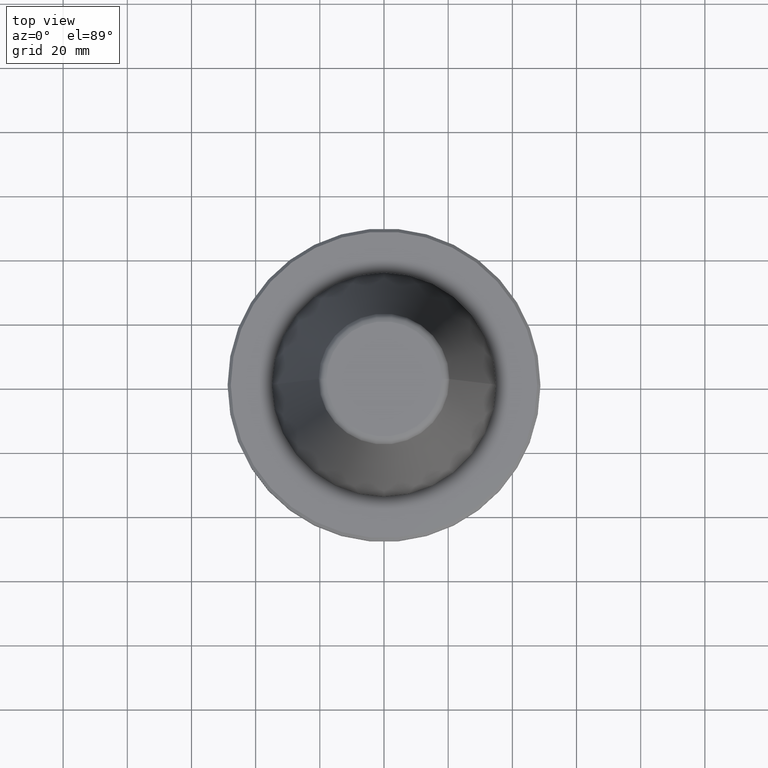
[diagram: clean part render]
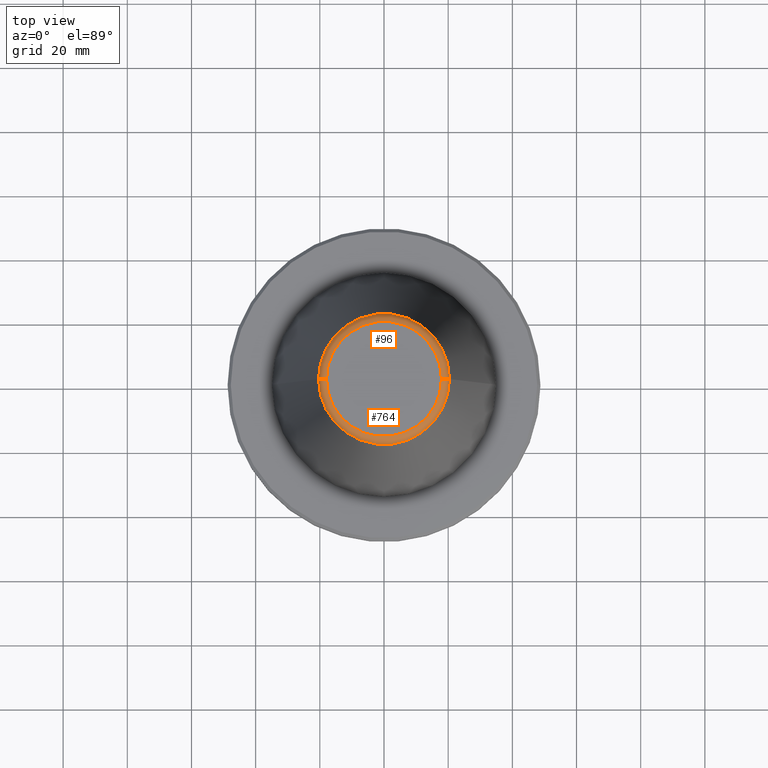
[diagram: same view with one multi-face feature highlighted, each face labeled with its STEP entity id]
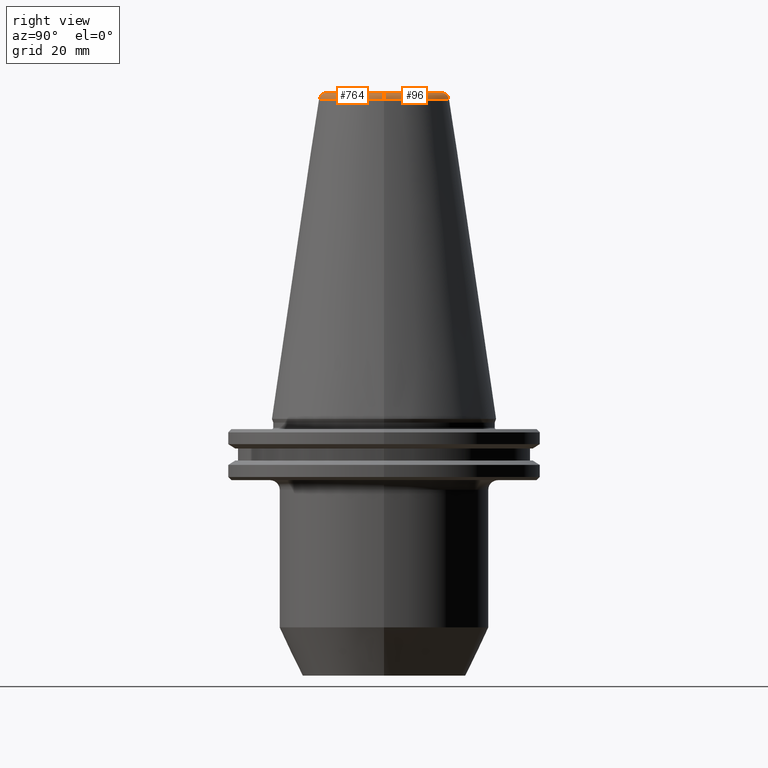
[diagram: same view with one multi-face feature highlighted, each face labeled with its STEP entity id]
A machine part, top view. The highlighted faces form ONE feature: a constant-radius fillet chain: 2 tangent blend faces with common blend radius 2.5 mm. The faces share edges in the B-rep.
A second angle (right view) of the same feature is appended — it is thin or edge-on in the first view.
Their STEP definitions:
[1] entity #96 (Torus):
#28 = DIRECTION ( 'NONE',  ( 1.000000000000000000, 0.0000000000000000000, 0.0000000000000000000 ) ) ;
#53 = AXIS2_PLACEMENT_3D ( 'NONE', #312, #921, #692 ) ;
#96 = ADVANCED_FACE ( 'NONE', ( #345 ), #957, .T. ) ;
#114 = DIRECTION ( 'NONE',  ( 0.0000000000000000000, -1.000000000000000000, 0.0000000000000000000 ) ) ;
#124 = ORIENTED_EDGE ( 'NONE', *, *, #830, .F. ) ;
#164 = DIRECTION ( 'NONE',  ( 1.224646799147353200E-016, 1.000000000000000000, 0.0000000000000000000 ) ) ;
#184 = AXIS2_PLACEMENT_3D ( 'NONE', #269, #114, #895 ) ;
#188 = VERTEX_POINT ( 'NONE', #527 ) ;
#219 = VERTEX_POINT ( 'NONE', #983 ) ;
#226 = CIRCLE ( 'NONE', #565, 20.39829252569114000 ) ;
#247 = DIRECTION ( 'NONE',  ( 1.000000000000000000, 0.0000000000000000000, 0.0000000000000000000 ) ) ;
#269 = CARTESIAN_POINT ( 'NONE',  ( 17.92446055806129500, 0.0000000000000000000, 99.25000000000000000 ) ) ;
#304 = AXIS2_PLACEMENT_3D ( 'NONE', #337, #792, #247 ) ;
#312 = CARTESIAN_POINT ( 'NONE',  ( 0.0000000000000000000, 0.0000000000000000000, 99.25000000000000000 ) ) ;
#334 = EDGE_CURVE ( 'NONE', #188, #886, #760, .T. ) ;
#337 = CARTESIAN_POINT ( 'NONE',  ( 0.0000000000000000000, 0.0000000000000000000, 101.7500000000000900 ) ) ;
#344 = CIRCLE ( 'NONE', #304, 17.92446055806129500 ) ;
#345 = FACE_OUTER_BOUND ( 'NONE', #632, .T. ) ;
#442 = EDGE_CURVE ( 'NONE', #680, #188, #226, .T. ) ;
#501 = ORIENTED_EDGE ( 'NONE', *, *, #334, .T. ) ;
#527 = CARTESIAN_POINT ( 'NONE',  ( -20.39829252569114000, 0.0000000000000000000, 99.61077055857353500 ) ) ;
#543 = EDGE_CURVE ( 'NONE', #219, #886, #344, .T. ) ;
#565 = AXIS2_PLACEMENT_3D ( 'NONE', #728, #955, #28 ) ;
#632 = EDGE_LOOP ( 'NONE', ( #989, #501, #823, #124 ) ) ;
#680 = VERTEX_POINT ( 'NONE', #849 ) ;
#692 = DIRECTION ( 'NONE',  ( 1.000000000000000000, 0.0000000000000000000, 0.0000000000000000000 ) ) ;
#728 = CARTESIAN_POINT ( 'NONE',  ( 0.0000000000000000000, 0.0000000000000000000, 99.61077055857353500 ) ) ;
#758 = CIRCLE ( 'NONE', #184, 2.500000000000085300 ) ;
#760 = CIRCLE ( 'NONE', #808, 2.500000000000082200 ) ;
#792 = DIRECTION ( 'NONE',  ( -0.0000000000000000000, -0.0000000000000000000, 1.000000000000000000 ) ) ;
#807 = DIRECTION ( 'NONE',  ( -1.000000000000000000, 1.224646799147353500E-016, 0.0000000000000000000 ) ) ;
#808 = AXIS2_PLACEMENT_3D ( 'NONE', #994, #164, #807 ) ;
#823 = ORIENTED_EDGE ( 'NONE', *, *, #543, .F. ) ;
#830 = EDGE_CURVE ( 'NONE', #680, #219, #758, .T. ) ;
#849 = CARTESIAN_POINT ( 'NONE',  ( 20.39829252569114000, 3.387574655494023600E-015, 99.61077055857353500 ) ) ;
#886 = VERTEX_POINT ( 'NONE', #910 ) ;
#895 = DIRECTION ( 'NONE',  ( 0.0000000000000000000, 0.0000000000000000000, -1.000000000000000000 ) ) ;
#910 = CARTESIAN_POINT ( 'NONE',  ( -17.92446055806129500, 2.346591844926584100E-015, 101.7500000000000900 ) ) ;
#921 = DIRECTION ( 'NONE',  ( -0.0000000000000000000, -0.0000000000000000000, 1.000000000000000000 ) ) ;
#955 = DIRECTION ( 'NONE',  ( -0.0000000000000000000, -0.0000000000000000000, 1.000000000000000000 ) ) ;
#957 = TOROIDAL_SURFACE ( 'NONE', #53, 17.92446055806129500, 2.500000000000083000 ) ;
#983 = CARTESIAN_POINT ( 'NONE',  ( 17.92446055806129500, 0.0000000000000000000, 101.7500000000000900 ) ) ;
#989 = ORIENTED_EDGE ( 'NONE', *, *, #442, .T. ) ;
#994 = CARTESIAN_POINT ( 'NONE',  ( -17.92446055806129500, 2.195113324887274600E-015, 99.25000000000000000 ) ) ;
[2] entity #764 (Torus):
#18 = EDGE_CURVE ( 'NONE', #886, #219, #463, .T. ) ;
#32 = DIRECTION ( 'NONE',  ( 1.000000000000000000, 0.0000000000000000000, 0.0000000000000000000 ) ) ;
#33 = TOROIDAL_SURFACE ( 'NONE', #244, 17.92446055806129500, 2.500000000000083000 ) ;
#112 = CARTESIAN_POINT ( 'NONE',  ( 0.0000000000000000000, 0.0000000000000000000, 99.61077055857353500 ) ) ;
#114 = DIRECTION ( 'NONE',  ( 0.0000000000000000000, -1.000000000000000000, 0.0000000000000000000 ) ) ;
#164 = DIRECTION ( 'NONE',  ( 1.224646799147353200E-016, 1.000000000000000000, 0.0000000000000000000 ) ) ;
#184 = AXIS2_PLACEMENT_3D ( 'NONE', #269, #114, #895 ) ;
#188 = VERTEX_POINT ( 'NONE', #527 ) ;
#194 = DIRECTION ( 'NONE',  ( -0.0000000000000000000, -0.0000000000000000000, 1.000000000000000000 ) ) ;
#201 = AXIS2_PLACEMENT_3D ( 'NONE', #112, #194, #32 ) ;
#219 = VERTEX_POINT ( 'NONE', #983 ) ;
#223 = CARTESIAN_POINT ( 'NONE',  ( 0.0000000000000000000, 0.0000000000000000000, 99.25000000000000000 ) ) ;
#244 = AXIS2_PLACEMENT_3D ( 'NONE', #223, #934, #472 ) ;
#269 = CARTESIAN_POINT ( 'NONE',  ( 17.92446055806129500, 0.0000000000000000000, 99.25000000000000000 ) ) ;
#285 = DIRECTION ( 'NONE',  ( -0.0000000000000000000, -0.0000000000000000000, 1.000000000000000000 ) ) ;
#334 = EDGE_CURVE ( 'NONE', #188, #886, #760, .T. ) ;
#434 = DIRECTION ( 'NONE',  ( 1.000000000000000000, 0.0000000000000000000, 0.0000000000000000000 ) ) ;
#440 = AXIS2_PLACEMENT_3D ( 'NONE', #752, #285, #434 ) ;
#463 = CIRCLE ( 'NONE', #440, 17.92446055806129500 ) ;
#472 = DIRECTION ( 'NONE',  ( 1.000000000000000000, 0.0000000000000000000, 0.0000000000000000000 ) ) ;
#499 = FACE_OUTER_BOUND ( 'NONE', #997, .T. ) ;
#527 = CARTESIAN_POINT ( 'NONE',  ( -20.39829252569114000, 0.0000000000000000000, 99.61077055857353500 ) ) ;
#538 = ORIENTED_EDGE ( 'NONE', *, *, #830, .T. ) ;
#580 = CIRCLE ( 'NONE', #201, 20.39829252569114000 ) ;
#680 = VERTEX_POINT ( 'NONE', #849 ) ;
#733 = ORIENTED_EDGE ( 'NONE', *, *, #820, .T. ) ;
#752 = CARTESIAN_POINT ( 'NONE',  ( 0.0000000000000000000, 0.0000000000000000000, 101.7500000000000900 ) ) ;
#758 = CIRCLE ( 'NONE', #184, 2.500000000000085300 ) ;
#759 = ORIENTED_EDGE ( 'NONE', *, *, #334, .F. ) ;
#760 = CIRCLE ( 'NONE', #808, 2.500000000000082200 ) ;
#764 = ADVANCED_FACE ( 'NONE', ( #499 ), #33, .T. ) ;
#807 = DIRECTION ( 'NONE',  ( -1.000000000000000000, 1.224646799147353500E-016, 0.0000000000000000000 ) ) ;
#808 = AXIS2_PLACEMENT_3D ( 'NONE', #994, #164, #807 ) ;
#820 = EDGE_CURVE ( 'NONE', #188, #680, #580, .T. ) ;
#830 = EDGE_CURVE ( 'NONE', #680, #219, #758, .T. ) ;
#849 = CARTESIAN_POINT ( 'NONE',  ( 20.39829252569114000, 3.387574655494023600E-015, 99.61077055857353500 ) ) ;
#886 = VERTEX_POINT ( 'NONE', #910 ) ;
#895 = DIRECTION ( 'NONE',  ( 0.0000000000000000000, 0.0000000000000000000, -1.000000000000000000 ) ) ;
#910 = CARTESIAN_POINT ( 'NONE',  ( -17.92446055806129500, 2.346591844926584100E-015, 101.7500000000000900 ) ) ;
#912 = ORIENTED_EDGE ( 'NONE', *, *, #18, .F. ) ;
#934 = DIRECTION ( 'NONE',  ( -0.0000000000000000000, -0.0000000000000000000, 1.000000000000000000 ) ) ;
#983 = CARTESIAN_POINT ( 'NONE',  ( 17.92446055806129500, 0.0000000000000000000, 101.7500000000000900 ) ) ;
#994 = CARTESIAN_POINT ( 'NONE',  ( -17.92446055806129500, 2.195113324887274600E-015, 99.25000000000000000 ) ) ;
#997 = EDGE_LOOP ( 'NONE', ( #759, #733, #538, #912 ) ) ;